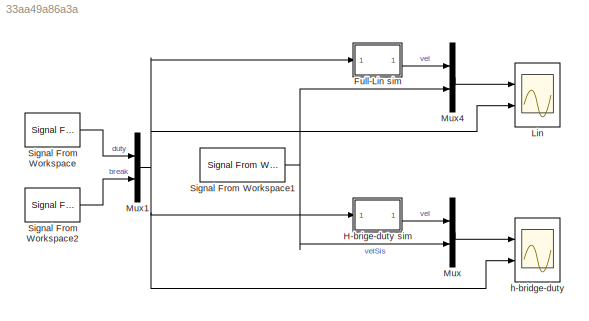
MODEL slx_33aa49a86a3a
KIND model
CONFIG AbsTol = auto
CONFIG EnableMultiTasking = off
CONFIG FixedStep = auto
CONFIG InitFcn = A03_BoldMotSimVar
CONFIG MaxStep = auto
CONFIG MinStep = auto
CONFIG RelTol = 1e-3
CONFIG SampleTimeConstraint = Unconstrained
CONFIG Solver = VariableStepAuto
CONFIG SolverName = VariableStepAuto
CONFIG StartTime = 0.0
CONFIG StopTime = 70
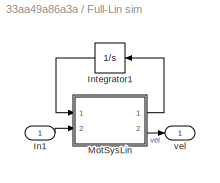
BLOCK [SubSystem] Full-Lin sim
  Ports = [1, 1]
  RequestExecContextInheritance = off
BLOCK [Inport] Full-Lin sim/In1
  IconDisplay = Port number
BLOCK [Integrator] Full-Lin sim/Integrator1
  InitialCondition = v0
  Ports = [1, 1]
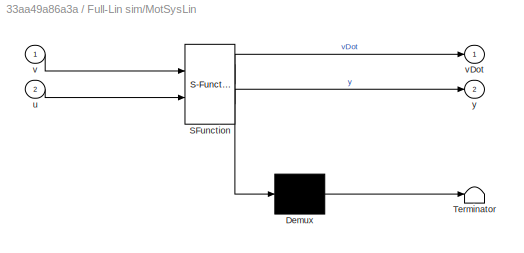
BLOCK [SubSystem] Full-Lin sim/MotSysLin
  ErrorFcn = Stateflow.Translate.translate
  PermitHierarchicalResolution = ExplicitOnly
  Ports = [2, 2]
  RequestExecContextInheritance = off
  SFBlockType = MATLAB Function
  TreatAsAtomicUnit = on
BLOCK [Demux] Full-Lin sim/MotSysLin/ Demux 
  Outputs = 1
  Ports = [1, 1]
BLOCK [S-Function] Full-Lin sim/MotSysLin/ SFunction 
  EnableBusSupport = on
  FunctionName = sf_sfun
  PortCounts = [2 3]
  Ports = [2, 3]
  SFcnIsStateOwnerBlock = off
  SFunctionDeploymentMode = off
  Tag = Stateflow S-Function A03_BoldMotSim 1
BLOCK [Terminator] Full-Lin sim/MotSysLin/ Terminator 
BLOCK [Inport] Full-Lin sim/MotSysLin/u
  IconDisplay = Port number
  Port = 2
BLOCK [Inport] Full-Lin sim/MotSysLin/v
  IconDisplay = Port number
BLOCK [Outport] Full-Lin sim/MotSysLin/vDot
  IconDisplay = Port number
BLOCK [Outport] Full-Lin sim/MotSysLin/y
  IconDisplay = Port number
  Port = 2
BLOCK [Outport] Full-Lin sim/vel
  IconDisplay = Port number
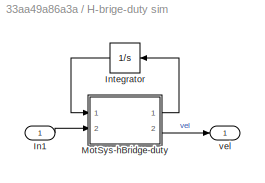
BLOCK [SubSystem] H-brige-duty sim
  Ports = [1, 1]
  RequestExecContextInheritance = off
BLOCK [Inport] H-brige-duty sim/In1
  IconDisplay = Port number
BLOCK [Integrator] H-brige-duty sim/Integrator
  InitialCondition = v0
  Ports = [1, 1]
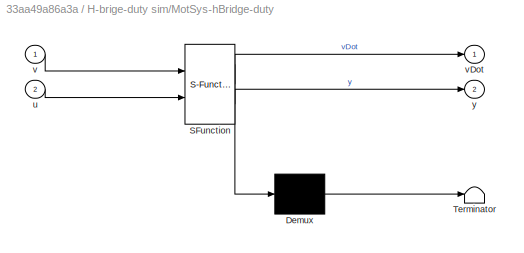
BLOCK [SubSystem] H-brige-duty sim/MotSys-hBridge-duty
  ErrorFcn = Stateflow.Translate.translate
  PermitHierarchicalResolution = ExplicitOnly
  Ports = [2, 2]
  RequestExecContextInheritance = off
  SFBlockType = MATLAB Function
  TreatAsAtomicUnit = on
BLOCK [Demux] H-brige-duty sim/MotSys-hBridge-duty/ Demux 
  Outputs = 1
  Ports = [1, 1]
BLOCK [S-Function] H-brige-duty sim/MotSys-hBridge-duty/ SFunction 
  EnableBusSupport = on
  FunctionName = sf_sfun
  PortCounts = [2 3]
  Ports = [2, 3]
  SFcnIsStateOwnerBlock = off
  SFunctionDeploymentMode = off
  Tag = Stateflow S-Function A03_BoldMotSim 2
BLOCK [Terminator] H-brige-duty sim/MotSys-hBridge-duty/ Terminator 
BLOCK [Inport] H-brige-duty sim/MotSys-hBridge-duty/u
  IconDisplay = Port number
  Port = 2
BLOCK [Inport] H-brige-duty sim/MotSys-hBridge-duty/v
  IconDisplay = Port number
BLOCK [Outport] H-brige-duty sim/MotSys-hBridge-duty/vDot
  IconDisplay = Port number
BLOCK [Outport] H-brige-duty sim/MotSys-hBridge-duty/y
  IconDisplay = Port number
  Port = 2
BLOCK [Outport] H-brige-duty sim/vel
  IconDisplay = Port number
BLOCK [Scope] Lin
  Floating = off
  NumInputPorts = 2
  Ports = [2]
  ScopeSpecificationString = Simulink.scopes.TimeScopeBlockCfg('CurrentConfiguration', extmgr.ConfigurationSet(extmgr.Configuration('Core','General UI',true),extmgr.Configuration('Core','Source UI',true),extmgr.Configuration('Sources','WiredSimulink',true,'DataLoggingVariableName','ScopeData3'),extmgr.Configuration('Visuals','Time Domain',true,'SerializedDisplays',{struct('MinYLimReal','-121.644','MaxYLimReal','122.6673','YLa...<+2464ch>
BLOCK [Mux] Mux
  DisplayOption = bar
  Inputs = 2
  Ports = [2, 1]
BLOCK [Mux] Mux1
  DisplayOption = bar
  Inputs = 2
  Ports = [2, 1]
BLOCK [Mux] Mux4
  DisplayOption = bar
  Inputs = 2
  Ports = [2, 1]
BLOCK [Reference] Signal From Workspace  REF=dspsrcs4/Signal From
Workspace
  Ports = [0, 1]
  SourceBlock = dspsrcs4/Signal From\nWorkspace
  SourceProductBaseCode = DS
  SourceProductName = DSP System Toolbox
  SourceType = Signal From Workspace
BLOCK [Reference] Signal From Workspace1  REF=dspsrcs4/Signal From
Workspace
  Ports = [0, 1]
  SourceBlock = dspsrcs4/Signal From\nWorkspace
  SourceProductBaseCode = DS
  SourceProductName = DSP System Toolbox
  SourceType = Signal From Workspace
BLOCK [Reference] Signal From Workspace2  REF=dspsrcs4/Signal From
Workspace
  Ports = [0, 1]
  SourceBlock = dspsrcs4/Signal From\nWorkspace
  SourceProductBaseCode = DS
  SourceProductName = DSP System Toolbox
  SourceType = Signal From Workspace
BLOCK [Scope] h-bridge-duty
  Floating = off
  NumInputPorts = 2
  Ports = [2]
  ScopeSpecificationString = Simulink.scopes.TimeScopeBlockCfg('CurrentConfiguration', extmgr.ConfigurationSet(extmgr.Configuration('Core','General UI',true),extmgr.Configuration('Core','Source UI',true),extmgr.Configuration('Sources','WiredSimulink',true),extmgr.Configuration('Visuals','Time Domain',true,'SerializedDisplays',{struct('MinYLimReal','-90.81729','MaxYLimReal','90.81729','YLabelReal','rad/s','MinYLimMag','0.00000...<+2399ch>
LINE Full-Lin sim/In1:1 -> Full-Lin sim/MotSysLin:2
LINE Full-Lin sim/Integrator1:1 -> Full-Lin sim/MotSysLin:1
LINE Full-Lin sim/MotSysLin:1 -> Full-Lin sim/Integrator1:1
LINE Full-Lin sim/MotSysLin:2 -> Full-Lin sim/vel:1
LINE Full-Lin sim:1 -> Mux4:1
LINE H-brige-duty sim/In1:1 -> H-brige-duty sim/MotSys-hBridge-duty:2
LINE H-brige-duty sim/Integrator:1 -> H-brige-duty sim/MotSys-hBridge-duty:1
LINE H-brige-duty sim/MotSys-hBridge-duty:1 -> H-brige-duty sim/Integrator:1
LINE H-brige-duty sim/MotSys-hBridge-duty:2 -> H-brige-duty sim/vel:1
LINE H-brige-duty sim:1 -> Mux:1
NET Mux1:1 -> Full-Lin sim:1, H-brige-duty sim:1, Lin:2, h-bridge-duty:2
LINE Mux4:1 -> Lin:1
LINE Mux:1 -> h-bridge-duty:1
NET Signal From Workspace1:1 -> Mux4:2, Mux:2
LINE Signal From Workspace2:1 -> Mux1:2
LINE Signal From Workspace:1 -> Mux1:1
note: NET lines group one-source signal fan-out (src -> all destinations, sorted); 1:1 wires keep LINE
CHART Full-Lin sim/MotSysLin states=1 transitions=1
  STATE_LABEL 'eML_blk_kernel()'
  STATE_LABEL "SCRIPT:\nfunction [vDot,y] = motor(v,u)\n% u(1) = % pwm al motore\n% u(2) = % Brake on/off\n\ncoder.extrinsic('evalin', 'assignin')\n\nka = 0;                  % Needed in order to set variable class correctly\nka = evalin('base','ka'); % Read value from workspace\n\nrho = 0;                  % Needed in order to set variable class correctly\nrho = evalin('base','rho'); % Read value from workspace\n\n\nvDot = -...<+26ch>"
CHART H-brige-duty sim/MotSys-hBridge-duty states=1 transitions=1
  STATE_LABEL 'eML_blk_kernel()'
  STATE_LABEL "SCRIPT:\nfunction [vDot,y] = motor(v,u)\n% u(1) = % pwm al motore\n% u(2) = % Brake on/off\n\ncoder.extrinsic('evalin', 'assignin')\n\nka = 0;                  % Needed in order to set variable class correctly\nka = evalin('base','ka'); % Read value from workspace\n\nrho = 0;                  % Needed in order to set variable class correctly\nrho = evalin('base','rho'); % Read value from workspace\n\nrhoMec = ...<+693ch>"
